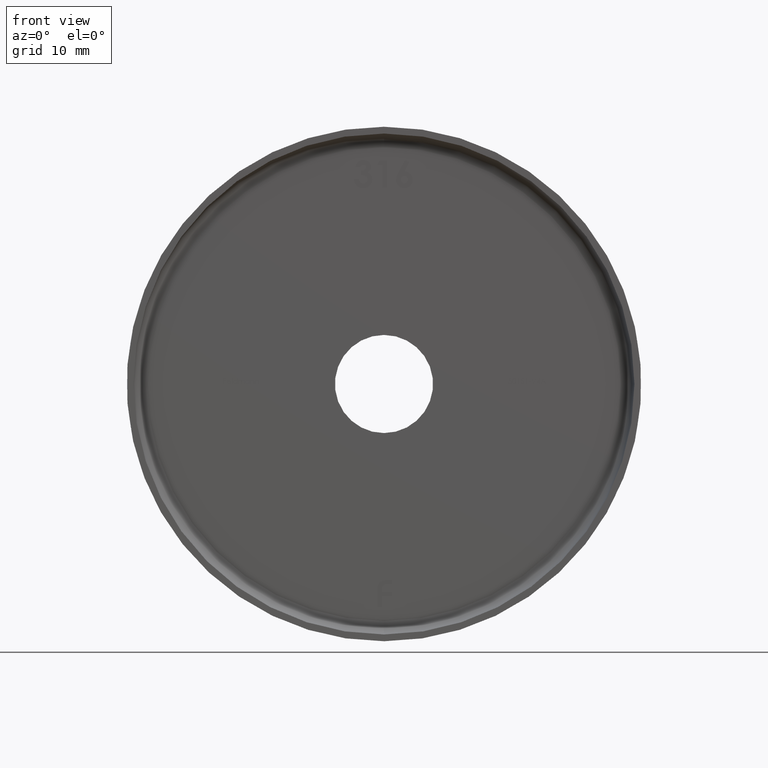
[diagram: clean part render]
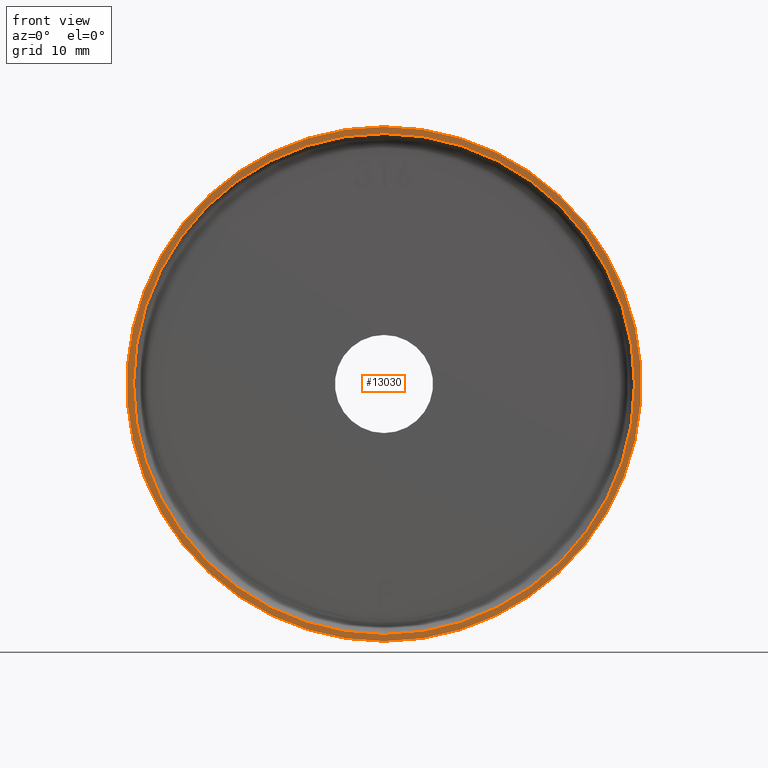
[diagram: same view with one face highlighted and labeled with its STEP entity id]
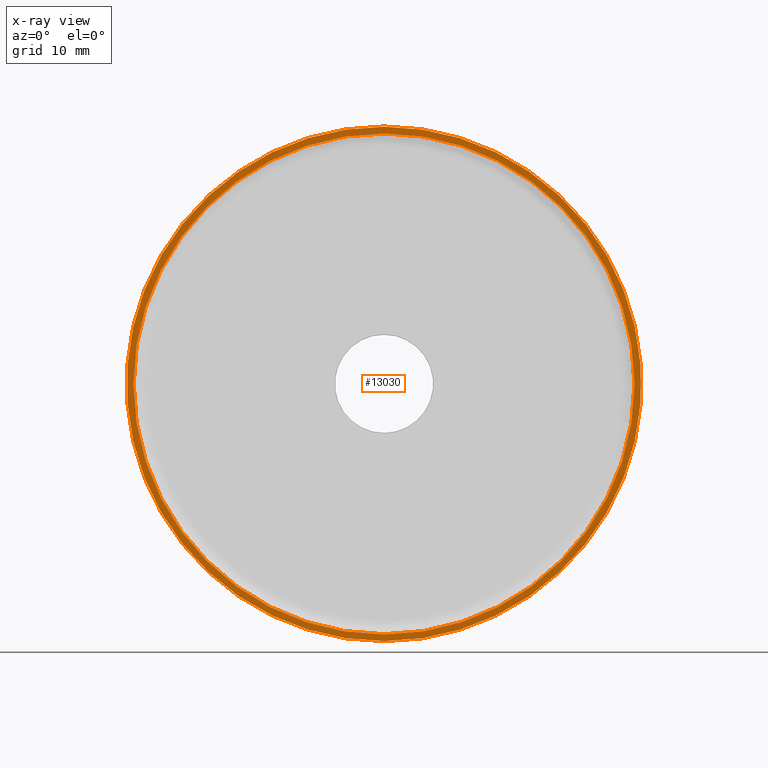
[diagram: x-ray of the same camera — body ghosted, the highlighted face saturated]
A machine part, front view. The second image highlights one B-rep face of the part: STEP entity #13030.
The next image is the same camera in x-ray: the body ghosted, the highlighted face saturated — about 0% of this face is hidden behind the body in this view.
In plain terms, the highlighted planar face has unit normal (0, -1, -0).
Its self-contained STEP definition (entity closure, byte-faithful):
#480 = DIRECTION ( 'NONE',  ( 0.000000000000000000, 0.000000000000000000, -1.000000000000000000 ) ) ;
#789 = DIRECTION ( 'NONE',  ( -0.000000000000000000, -1.000000000000000000, -0.000000000000000000 ) ) ;
#829 = CARTESIAN_POINT ( 'NONE',  ( 0.000000000000000000, -1.224646799147353207E-16, -37.00000000000000711 ) ) ;
#2365 = ORIENTED_EDGE ( 'NONE', *, *, #12945, .T. ) ;
#2513 = PLANE ( 'NONE',  #8580 ) ;
#3230 = ORIENTED_EDGE ( 'NONE', *, *, #11575, .F. ) ;
#3449 = CARTESIAN_POINT ( 'NONE',  ( 4.653657836759942730E-15, 0.000000000000000000, 38.00000000000000711 ) ) ;
#3471 = AXIS2_PLACEMENT_3D ( 'NONE', #10422, #10470, #6409 ) ;
#4058 = VERTEX_POINT ( 'NONE', #5270 ) ;
#4072 = CARTESIAN_POINT ( 'NONE',  ( 4.531193156845207581E-15, -1.224646799147353207E-16, 37.00000000000000711 ) ) ;
#4209 = AXIS2_PLACEMENT_3D ( 'NONE', #6774, #10875, #480 ) ;
#4647 = CARTESIAN_POINT ( 'NONE',  ( 37.00000000000000711, -6.123233995736766036E-17, 0.000000000000000000 ) ) ;
#4839 = CARTESIAN_POINT ( 'NONE',  ( 0.000000000000000000, -1.224646799147353207E-16, 0.000000000000000000 ) ) ;
#4973 = CIRCLE ( 'NONE', #4209, 38.00000000000000711 ) ;
#4976 = DIRECTION ( 'NONE',  ( -0.000000000000000000, -1.000000000000000000, -0.000000000000000000 ) ) ;
#5270 = CARTESIAN_POINT ( 'NONE',  ( 0.000000000000000000, 0.000000000000000000, -38.00000000000000711 ) ) ;
#5339 = CIRCLE ( 'NONE', #3471, 37.00000000000000711 ) ;
#5931 = CIRCLE ( 'NONE', #8930, 38.00000000000000711 ) ;
#6409 = DIRECTION ( 'NONE',  ( 0.000000000000000000, 0.000000000000000000, -1.000000000000000000 ) ) ;
#6774 = CARTESIAN_POINT ( 'NONE',  ( 0.000000000000000000, 0.000000000000000000, 0.000000000000000000 ) ) ;
#7548 = ORIENTED_EDGE ( 'NONE', *, *, #12024, .T. ) ;
#7560 = CIRCLE ( 'NONE', #11280, 37.00000000000000711 ) ;
#8085 = EDGE_CURVE ( 'NONE', #8883, #10272, #5339, .T. ) ;
#8476 = FACE_BOUND ( 'NONE', #12212, .T. ) ;
#8580 = AXIS2_PLACEMENT_3D ( 'NONE', #4647, #12883, #9833 ) ;
#8883 = VERTEX_POINT ( 'NONE', #829 ) ;
#8930 = AXIS2_PLACEMENT_3D ( 'NONE', #11201, #789, #13256 ) ;
#8982 = FACE_OUTER_BOUND ( 'NONE', #13485, .T. ) ;
#9016 = VERTEX_POINT ( 'NONE', #3449 ) ;
#9833 = DIRECTION ( 'NONE',  ( 0.000000000000000000, 0.000000000000000000, -1.000000000000000000 ) ) ;
#10272 = VERTEX_POINT ( 'NONE', #4072 ) ;
#10422 = CARTESIAN_POINT ( 'NONE',  ( 0.000000000000000000, -1.224646799147353207E-16, 0.000000000000000000 ) ) ;
#10470 = DIRECTION ( 'NONE',  ( -0.000000000000000000, -1.000000000000000000, -0.000000000000000000 ) ) ;
#10875 = DIRECTION ( 'NONE',  ( -0.000000000000000000, -1.000000000000000000, -0.000000000000000000 ) ) ;
#11201 = CARTESIAN_POINT ( 'NONE',  ( 0.000000000000000000, 0.000000000000000000, 0.000000000000000000 ) ) ;
#11280 = AXIS2_PLACEMENT_3D ( 'NONE', #4839, #4976, #12176 ) ;
#11575 = EDGE_CURVE ( 'NONE', #10272, #8883, #7560, .T. ) ;
#11581 = ORIENTED_EDGE ( 'NONE', *, *, #8085, .F. ) ;
#12024 = EDGE_CURVE ( 'NONE', #9016, #4058, #5931, .T. ) ;
#12176 = DIRECTION ( 'NONE',  ( 0.000000000000000000, 0.000000000000000000, -1.000000000000000000 ) ) ;
#12212 = EDGE_LOOP ( 'NONE', ( #11581, #3230 ) ) ;
#12883 = DIRECTION ( 'NONE',  ( 0.000000000000000000, -1.000000000000000000, -0.000000000000000000 ) ) ;
#12945 = EDGE_CURVE ( 'NONE', #4058, #9016, #4973, .T. ) ;
#13030 = ADVANCED_FACE ( 'NONE', ( #8982, #8476 ), #2513, .T. ) ;
#13256 = DIRECTION ( 'NONE',  ( 0.000000000000000000, 0.000000000000000000, -1.000000000000000000 ) ) ;
#13485 = EDGE_LOOP ( 'NONE', ( #2365, #7548 ) ) ;